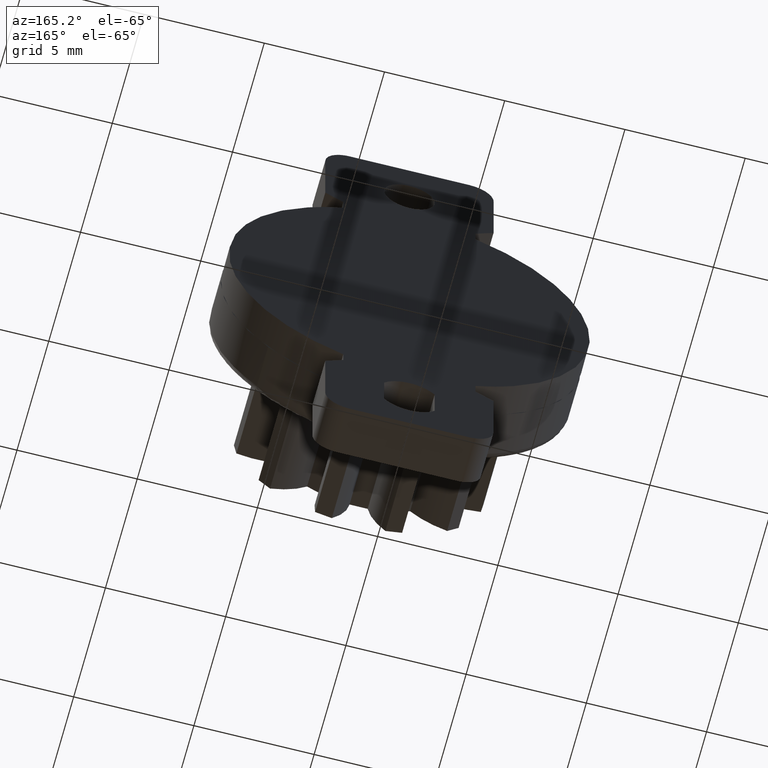
[diagram: clean part render]
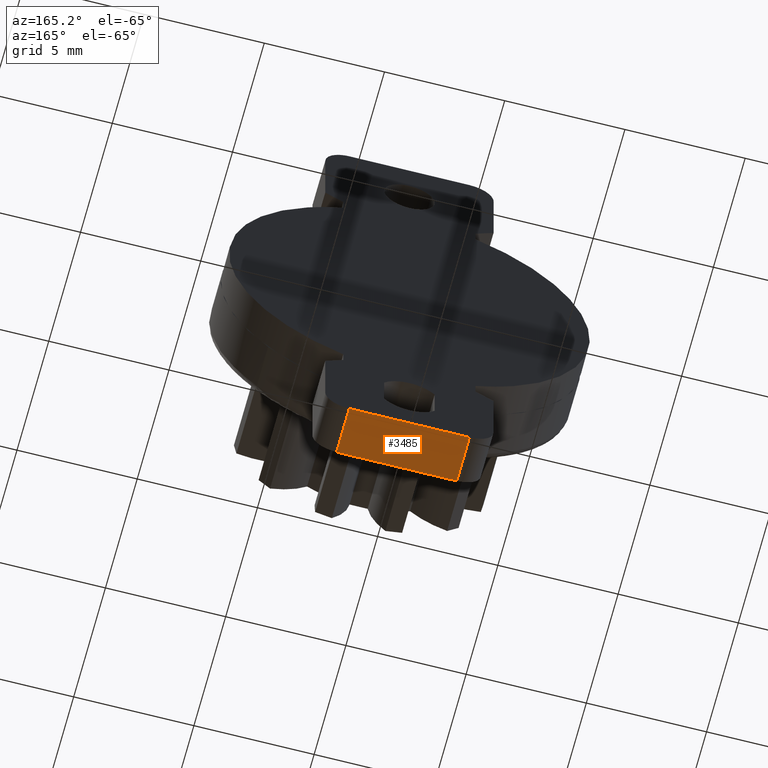
[diagram: same view with one face highlighted and labeled with its STEP entity id]
A machine part, auxiliary view. The second image highlights one B-rep face of the part: STEP entity #3485.
In plain terms, the highlighted face is a freeform B-spline surface patch.
Its self-contained STEP definition (entity closure, byte-faithful):
#3419=CARTESIAN_POINT('',(2.500000000000000,0.0,-12.0));
#3420=VERTEX_POINT('',#3419);
#3435=CARTESIAN_POINT('',(2.500000000000000,-2.0,-12.0));
#3436=VERTEX_POINT('',#3435);
#3450=CARTESIAN_POINT('',(2.500000000000000,-2.0,-12.0));
#3451=CARTESIAN_POINT('',(2.500000000000000,0.0,-12.0));
#3452=QUASI_UNIFORM_CURVE('',1,(#3450,#3451),.UNSPECIFIED.,.F.,.U.);
#3453=EDGE_CURVE('',#3436,#3420,#3452,.T.);
#3458=CARTESIAN_POINT('',(-2.749749990309030,-2.099899996123612,-12.0));
#3459=CARTESIAN_POINT('',(2.749750124419481,-2.099899996123612,-12.0));
#3460=CARTESIAN_POINT('',(-2.749749990309030,0.099900049767792,-12.0));
#3461=CARTESIAN_POINT('',(2.749750124419481,0.099900049767792,-12.0));
#3462=B_SPLINE_SURFACE_WITH_KNOTS('',1,1,((#3458,#3460),(#3459,#3461)),.UNSPECIFIED.,.F.,.F.,.U.,(2,2),(2,2),(0.0,5.499500114728511),(0.0,2.199800045891404),.UNSPECIFIED.);
#3463=CARTESIAN_POINT('',(-2.500000000000000,0.0,-12.0));
#3464=VERTEX_POINT('',#3463);
#3465=CARTESIAN_POINT('',(-2.500000000000000,0.0,-12.0));
#3466=CARTESIAN_POINT('',(2.500000000000000,0.0,-12.0));
#3467=QUASI_UNIFORM_CURVE('',1,(#3465,#3466),.UNSPECIFIED.,.F.,.U.);
#3468=EDGE_CURVE('',#3464,#3420,#3467,.T.);
#3469=ORIENTED_EDGE('',*,*,#3468,.T.);
#3470=ORIENTED_EDGE('',*,*,#3453,.F.);
#3471=CARTESIAN_POINT('',(-2.500000000000000,-2.0,-12.0));
#3472=VERTEX_POINT('',#3471);
#3473=CARTESIAN_POINT('',(-2.500000000000000,-2.0,-12.0));
#3474=CARTESIAN_POINT('',(2.500000000000000,-2.0,-12.0));
#3475=QUASI_UNIFORM_CURVE('',1,(#3473,#3474),.UNSPECIFIED.,.F.,.U.);
#3476=EDGE_CURVE('',#3472,#3436,#3475,.T.);
#3477=ORIENTED_EDGE('',*,*,#3476,.F.);
#3478=CARTESIAN_POINT('',(-2.500000000000000,-2.0,-12.0));
#3479=CARTESIAN_POINT('',(-2.500000000000000,0.0,-12.0));
#3480=QUASI_UNIFORM_CURVE('',1,(#3478,#3479),.UNSPECIFIED.,.F.,.U.);
#3481=EDGE_CURVE('',#3472,#3464,#3480,.T.);
#3482=ORIENTED_EDGE('',*,*,#3481,.T.);
#3483=EDGE_LOOP('',(#3469,#3470,#3477,#3482));
#3484=FACE_OUTER_BOUND('',#3483,.T.);
#3485=ADVANCED_FACE('',(#3484),#3462,.F.);